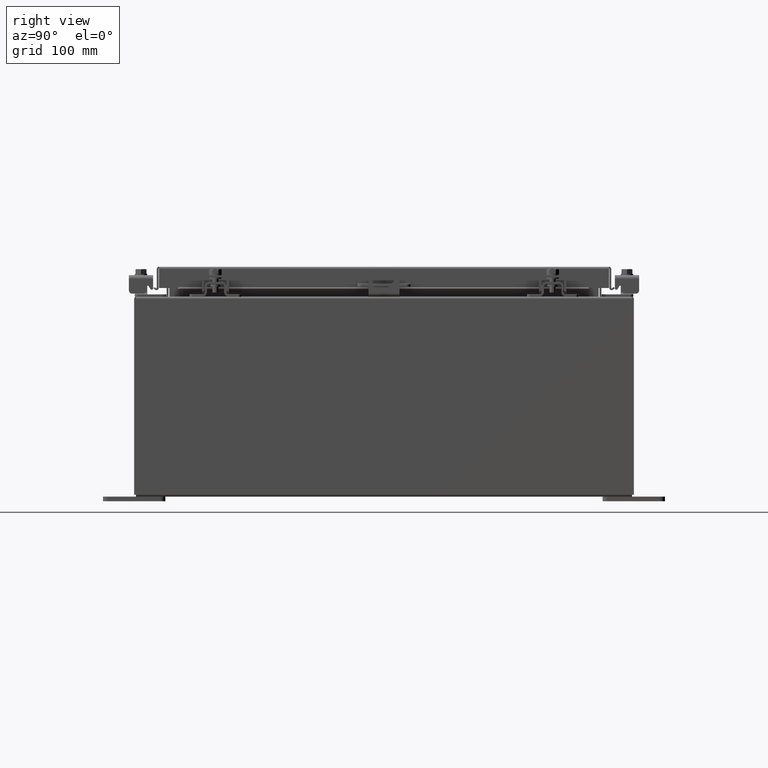
[diagram: clean part render]
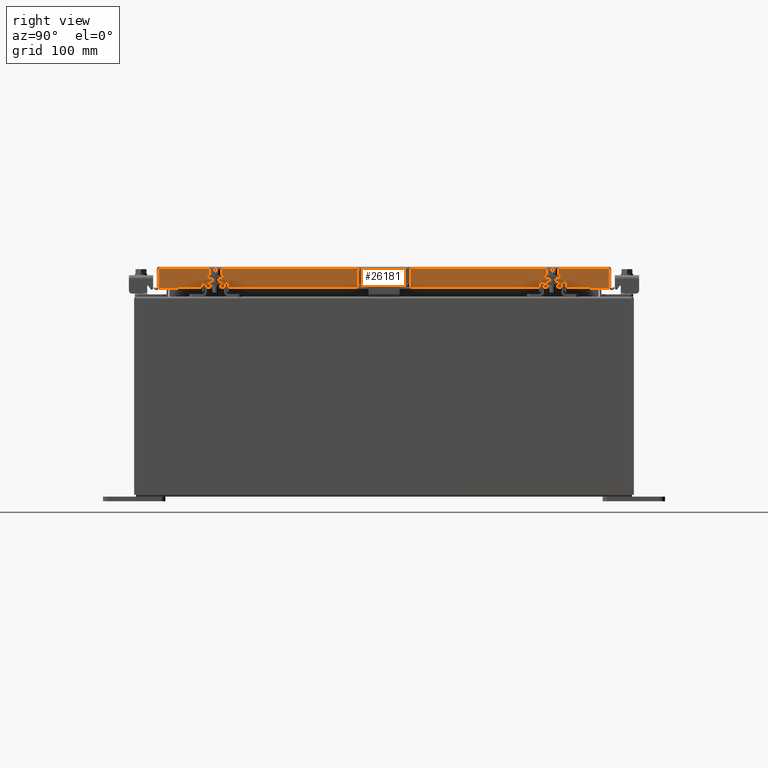
[diagram: same view with one face highlighted and labeled with its STEP entity id]
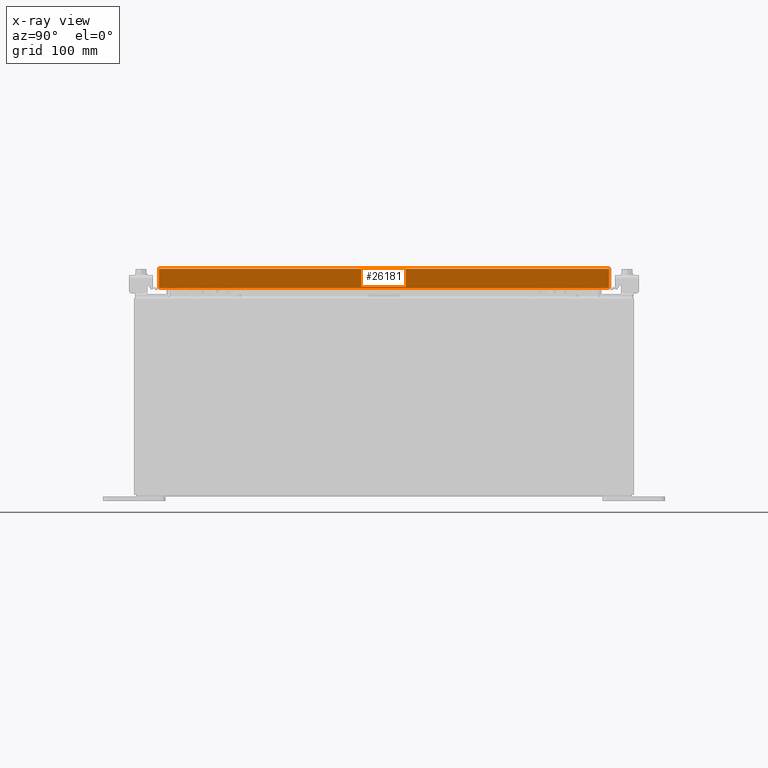
[diagram: x-ray of the same camera — body ghosted, the highlighted face saturated]
A machine part, right view. The second image highlights one B-rep face of the part: STEP entity #26181.
The next image is the same camera in x-ray: the body ghosted, the highlighted face saturated — about 0% of this face is hidden behind the body in this view.
In plain terms, the highlighted planar face has unit normal (1, 0, 0).
Its self-contained STEP definition (entity closure, byte-faithful):
#277 = LINE ( 'NONE', #7767, #23734 ) ;
#1698 = LINE ( 'NONE', #14772, #18419 ) ;
#2267 = PLANE ( 'NONE',  #22795 ) ;
#2863 = EDGE_LOOP ( 'NONE', ( #20330, #24661, #9423, #9543, #14328, #28276 ) ) ;
#3253 = VERTEX_POINT ( 'NONE', #26813 ) ;
#3627 = VERTEX_POINT ( 'NONE', #25328 ) ;
#4499 = CARTESIAN_POINT ( 'NONE',  ( 7.078000000000004700, -9.093999999999999400, -0.8499999999999996400 ) ) ;
#4545 = DIRECTION ( 'NONE',  ( 2.818880942772360100E-015, 0.0000000000000000000, -1.000000000000000000 ) ) ;
#5142 = CARTESIAN_POINT ( 'NONE',  ( 7.078000000000001200, 8.255157864376270600, -0.8500000000000024200 ) ) ;
#5713 = FACE_OUTER_BOUND ( 'NONE', #2863, .T. ) ;
#7081 = EDGE_CURVE ( 'NONE', #3253, #17730, #1698, .T. ) ;
#7767 = CARTESIAN_POINT ( 'NONE',  ( 7.078000000000002100, 0.0000000000000000000, -0.08770000000000007000 ) ) ;
#8950 = VECTOR ( 'NONE', #20407, 39.37007874015748100 ) ;
#9079 = CARTESIAN_POINT ( 'NONE',  ( 7.078000000000002100, 9.005157864376270600, -0.08770000000000007000 ) ) ;
#9423 = ORIENTED_EDGE ( 'NONE', *, *, #18861, .F. ) ;
#9543 = ORIENTED_EDGE ( 'NONE', *, *, #21055, .F. ) ;
#9966 = DIRECTION ( 'NONE',  ( -2.818880942772360100E-015, -6.982962677686265900E-015, 1.000000000000000000 ) ) ;
#12114 = VERTEX_POINT ( 'NONE', #9079 ) ;
#13456 = VERTEX_POINT ( 'NONE', #14819 ) ;
#14184 = VECTOR ( 'NONE', #9966, 39.37007874015748100 ) ;
#14328 = ORIENTED_EDGE ( 'NONE', *, *, #18286, .T. ) ;
#14410 = CARTESIAN_POINT ( 'NONE',  ( 7.078000000000004700, 9.005157864376274200, -0.8499999999999996400 ) ) ;
#14656 = DIRECTION ( 'NONE',  ( -2.818880942772360100E-015, -6.982962677686265900E-015, 1.000000000000000000 ) ) ;
#14772 = CARTESIAN_POINT ( 'NONE',  ( 7.078000000000004700, -9.093999999999999400, -0.8499999999999996400 ) ) ;
#14819 = CARTESIAN_POINT ( 'NONE',  ( 7.078000000000001200, 8.255157864376270600, -0.8500000000000024200 ) ) ;
#14971 = LINE ( 'NONE', #4499, #8950 ) ;
#14977 = CARTESIAN_POINT ( 'NONE',  ( 7.078000000000004700, -9.005157864376261800, -0.8499999999999996400 ) ) ;
#15461 = VECTOR ( 'NONE', #14656, 39.37007874015748100 ) ;
#15637 = CARTESIAN_POINT ( 'NONE',  ( 7.078000000000002100, 0.0000000000000000000, 2.021285296895435400E-014 ) ) ;
#16879 = DIRECTION ( 'NONE',  ( 0.0000000000000000000, -1.000000000000000000, 0.0000000000000000000 ) ) ;
#17599 = EDGE_CURVE ( 'NONE', #12114, #3627, #277, .T. ) ;
#17730 = VERTEX_POINT ( 'NONE', #14977 ) ;
#18153 = DIRECTION ( 'NONE',  ( 1.000000000000000000, 0.0000000000000000000, 2.818880942772360100E-015 ) ) ;
#18286 = EDGE_CURVE ( 'NONE', #24934, #12114, #25503, .T. ) ;
#18419 = VECTOR ( 'NONE', #19296, 39.37007874015748100 ) ;
#18861 = EDGE_CURVE ( 'NONE', #13456, #3253, #24020, .T. ) ;
#19296 = DIRECTION ( 'NONE',  ( 0.0000000000000000000, -1.000000000000000000, 0.0000000000000000000 ) ) ;
#19538 = LINE ( 'NONE', #25896, #14184 ) ;
#20330 = ORIENTED_EDGE ( 'NONE', *, *, #28086, .F. ) ;
#20407 = DIRECTION ( 'NONE',  ( 0.0000000000000000000, -1.000000000000000000, 0.0000000000000000000 ) ) ;
#21055 = EDGE_CURVE ( 'NONE', #24934, #13456, #14971, .T. ) ;
#21480 = CARTESIAN_POINT ( 'NONE',  ( 7.078000000000002100, 9.005157864376268900, 8.309553424256680500E-014 ) ) ;
#22795 = AXIS2_PLACEMENT_3D ( 'NONE', #15637, #18153, #4545 ) ;
#23315 = DIRECTION ( 'NONE',  ( 0.0000000000000000000, -1.000000000000000000, 0.0000000000000000000 ) ) ;
#23734 = VECTOR ( 'NONE', #16879, 39.37007874015748100 ) ;
#24020 = LINE ( 'NONE', #5142, #29386 ) ;
#24661 = ORIENTED_EDGE ( 'NONE', *, *, #7081, .F. ) ;
#24934 = VERTEX_POINT ( 'NONE', #14410 ) ;
#25328 = CARTESIAN_POINT ( 'NONE',  ( 7.078000000000002100, -9.005157864376267100, -0.08770000000000007000 ) ) ;
#25503 = LINE ( 'NONE', #21480, #15461 ) ;
#25896 = CARTESIAN_POINT ( 'NONE',  ( 7.078000000000002100, -9.005157864376267100, -0.07469999999999978000 ) ) ;
#26181 = ADVANCED_FACE ( 'NONE', ( #5713 ), #2267, .T. ) ;
#26813 = CARTESIAN_POINT ( 'NONE',  ( 7.078000000000001200, -8.255157864376260000, -0.8500000000000024200 ) ) ;
#28086 = EDGE_CURVE ( 'NONE', #17730, #3627, #19538, .T. ) ;
#28276 = ORIENTED_EDGE ( 'NONE', *, *, #17599, .T. ) ;
#29386 = VECTOR ( 'NONE', #23315, 39.37007874015748100 ) ;